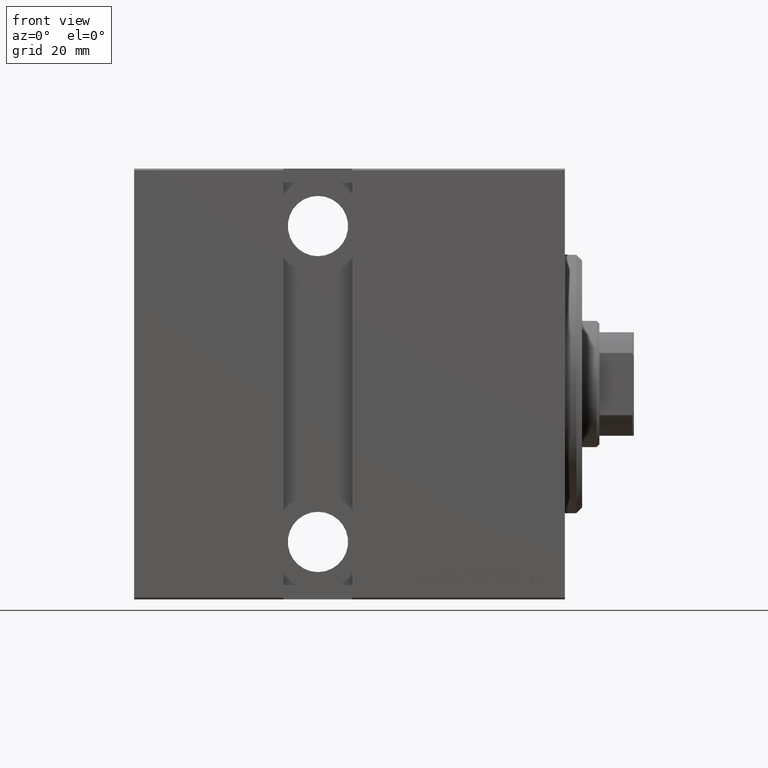
[diagram: clean part render]
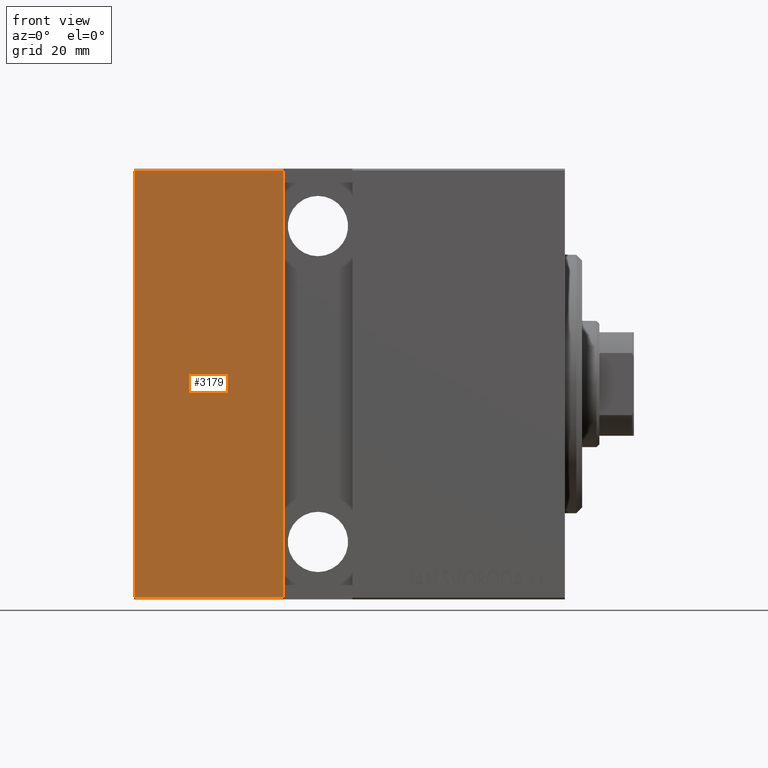
[diagram: same view with one face highlighted and labeled with its STEP entity id]
A machine part, front view. The second image highlights one B-rep face of the part: STEP entity #3179.
In plain terms, the highlighted planar face has unit normal (-0, 1, -0).
Its self-contained STEP definition (entity closure, byte-faithful):
#1149 = FACE_OUTER_BOUND ( 'NONE', #7334, .T. ) ;
#3179 = ADVANCED_FACE ( 'NONE', ( #1149 ), #30562, .F. ) ;
#5188 = CARTESIAN_POINT ( 'NONE',  ( 75.00000000000000000, 27.50000000000000355, -37.19999999999999574 ) ) ;
#5801 = EDGE_CURVE ( 'NONE', #39753, #20987, #8641, .T. ) ;
#7334 = EDGE_LOOP ( 'NONE', ( #22282, #32286, #31303, #15616 ) ) ;
#8641 = LINE ( 'NONE', #21816, #24407 ) ;
#9424 = CARTESIAN_POINT ( 'NONE',  ( 49.00000000000000000, 27.50000000000000000, 37.20000000000000995 ) ) ;
#12962 = CARTESIAN_POINT ( 'NONE',  ( 48.99999999999999289, 27.50000000000000000, -37.19999999999999574 ) ) ;
#14330 = DIRECTION ( 'NONE',  ( 0.000000000000000000, 9.251858538542970348E-17, -1.000000000000000000 ) ) ;
#15545 = DIRECTION ( 'NONE',  ( 1.000000000000000000, 0.000000000000000000, 0.000000000000000000 ) ) ;
#15616 = ORIENTED_EDGE ( 'NONE', *, *, #22642, .T. ) ;
#16666 = DIRECTION ( 'NONE',  ( -9.251858538542978977E-17, -0.000000000000000000, -1.000000000000000000 ) ) ;
#16810 = CARTESIAN_POINT ( 'NONE',  ( 75.00000000000000000, 27.49999999999999645, 37.20000000000000995 ) ) ;
#17889 = EDGE_CURVE ( 'NONE', #34569, #19075, #25768, .T. ) ;
#19047 = EDGE_CURVE ( 'NONE', #39753, #19075, #31790, .T. ) ;
#19075 = VERTEX_POINT ( 'NONE', #12962 ) ;
#20987 = VERTEX_POINT ( 'NONE', #16810 ) ;
#21251 = VECTOR ( 'NONE', #42165, 1000.000000000000000 ) ;
#21816 = CARTESIAN_POINT ( 'NONE',  ( 75.00000000000000000, 27.50000000000000355, -37.50000000000000711 ) ) ;
#22282 = ORIENTED_EDGE ( 'NONE', *, *, #5801, .F. ) ;
#22642 = EDGE_CURVE ( 'NONE', #34569, #20987, #41512, .T. ) ;
#23982 = VECTOR ( 'NONE', #15545, 1000.000000000000000 ) ;
#24407 = VECTOR ( 'NONE', #27688, 1000.000000000000000 ) ;
#25768 = LINE ( 'NONE', #29225, #38512 ) ;
#27688 = DIRECTION ( 'NONE',  ( 0.000000000000000000, -9.251858538542970348E-17, 1.000000000000000000 ) ) ;
#29225 = CARTESIAN_POINT ( 'NONE',  ( 48.99999999999999289, 27.50000000000000000, -37.50000000000000711 ) ) ;
#30562 = PLANE ( 'NONE',  #41700 ) ;
#31303 = ORIENTED_EDGE ( 'NONE', *, *, #17889, .F. ) ;
#31790 = LINE ( 'NONE', #5188, #21251 ) ;
#32286 = ORIENTED_EDGE ( 'NONE', *, *, #19047, .T. ) ;
#33412 = CARTESIAN_POINT ( 'NONE',  ( 75.00000000000000000, 27.50000000000000355, -37.19999999999999574 ) ) ;
#34008 = DIRECTION ( 'NONE',  ( 0.000000000000000000, -1.000000000000000000, -9.251858538542970348E-17 ) ) ;
#34569 = VERTEX_POINT ( 'NONE', #9424 ) ;
#38512 = VECTOR ( 'NONE', #16666, 1000.000000000000000 ) ;
#39753 = VERTEX_POINT ( 'NONE', #33412 ) ;
#40715 = CARTESIAN_POINT ( 'NONE',  ( 75.00000000000000000, 27.50000000000000355, -37.50000000000000711 ) ) ;
#41512 = LINE ( 'NONE', #41722, #23982 ) ;
#41700 = AXIS2_PLACEMENT_3D ( 'NONE', #40715, #34008, #14330 ) ;
#41722 = CARTESIAN_POINT ( 'NONE',  ( 75.00000000000000000, 27.49999999999999645, 37.20000000000000995 ) ) ;
#42165 = DIRECTION ( 'NONE',  ( -1.000000000000000000, 0.000000000000000000, 0.000000000000000000 ) ) ;